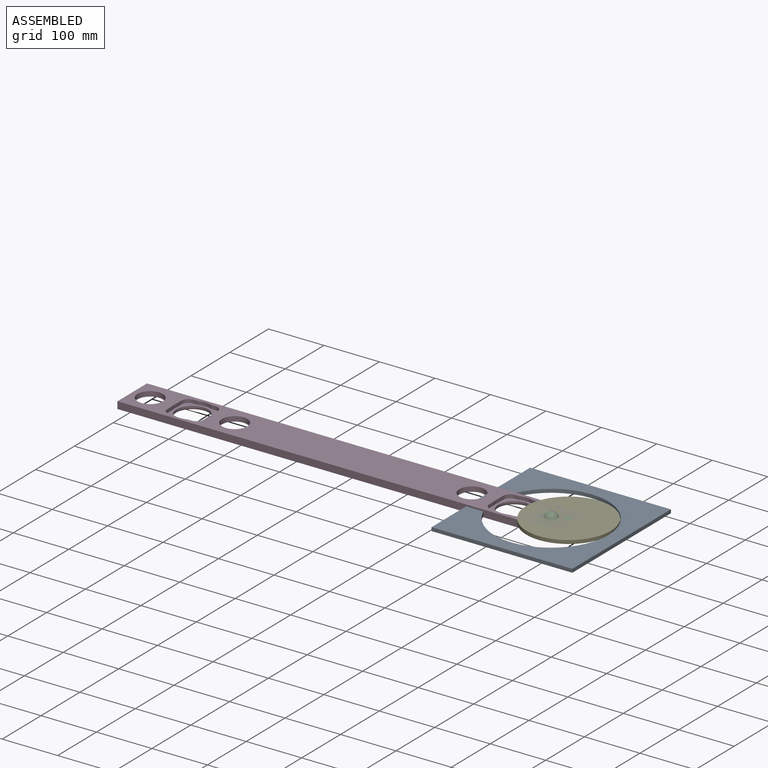
[diagram: assembled view]
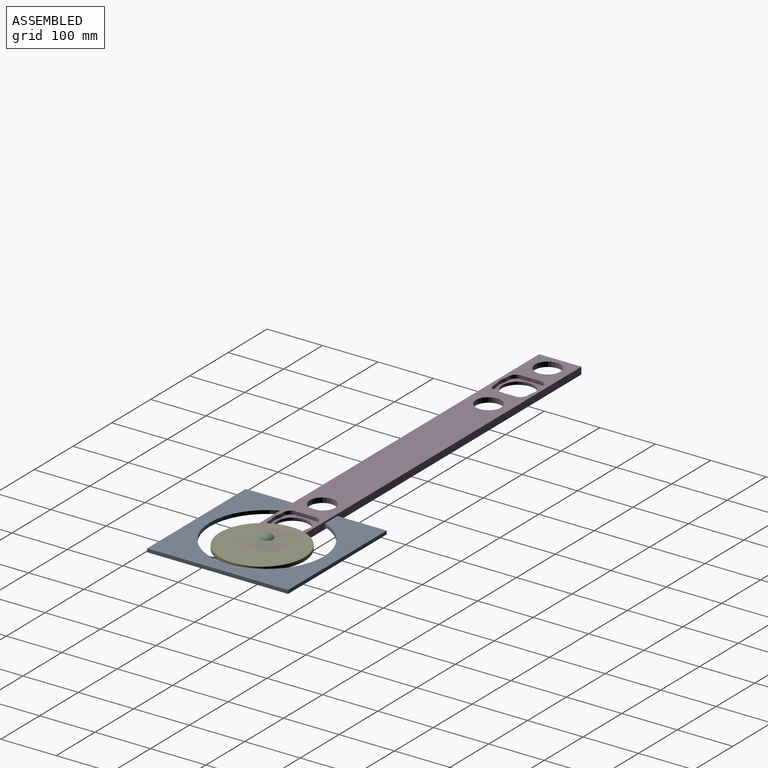
[diagram: assembled view, second angle]
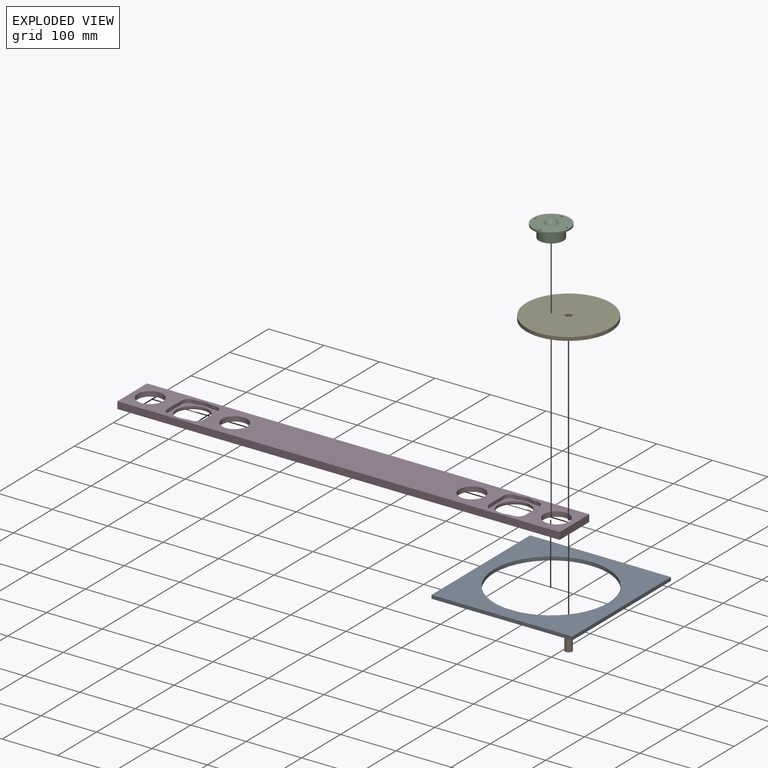
[diagram: exploded view]
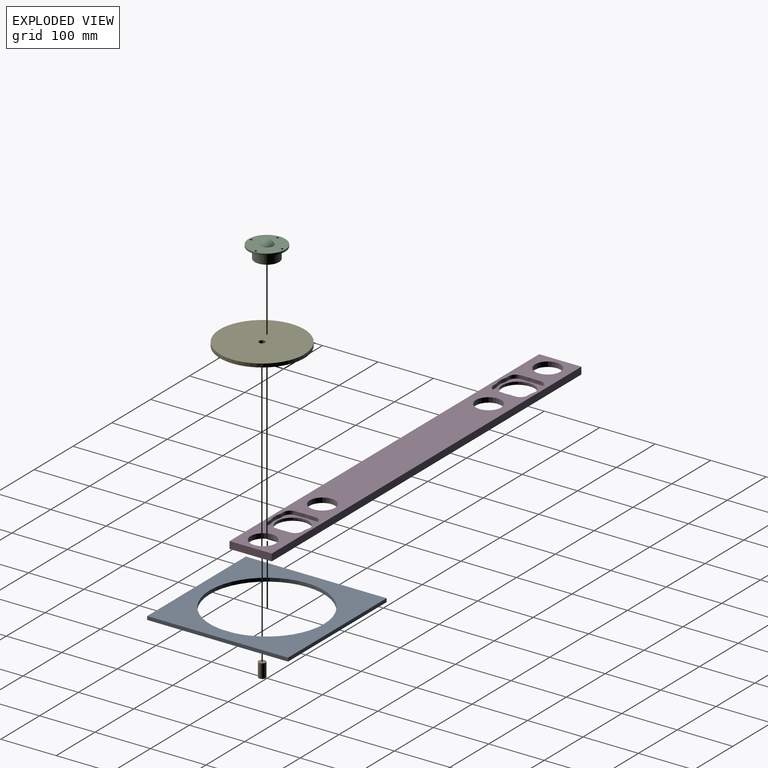
[diagram: exploded view, second angle]
ASSEMBLY  parts=4 mates=3
PART A: 7 faces, bbox 254x254x6.4 mm
  f0: plane 254x6.35mm, normal (0,1,0), area 1612.9mm2, adj f1,f4,f5,f6
  f1: plane 254x6.35mm, normal (-1,0,0), area 1612.9mm2, adj f0,f2,f5,f6
  f2: plane 254x6.35mm, normal (0,-1,0), area 1612.9mm2, adj f1,f4,f5,f6
  f3: cylinder r=102.87mm len=205.74mm, axis (0,0,-1), area 4104.3mm2, adj f5,f6
  f4: plane 254x6.35mm, normal (1,0,0), area 1612.9mm2, adj f0,f2,f5,f6
  f5: plane 254x254mm, normal (0,0,1), area 31270.9mm2, adj f0,f1,f2,f3,f4
  f6: plane 254x254mm, normal (0,0,-1), area 31270.9mm2, adj f0,f1,f2,f3,f4
PART B: 3 faces, bbox 12.7x12.7x25.4 mm
  f0: cylinder r=6.35mm len=25.4mm, axis (0,0,-1), area 1013.4mm2, adj f1,f2
  f1: plane 12.7x12.7mm, normal (0,0,1), area 126.7mm2, adj f0
  f2: plane 12.7x12.7mm, normal (0,0,-1), area 126.7mm2, adj f0
PART C: 74 faces, bbox 806x12.7x83.2 mm
  f0: plane 797.56x76.2mm, normal (0,1,0), area 46329.1mm2, adj f4,f5,f6,f7,f16,f17,f18,f19
  f1: cylinder r=28.57mm len=57.15mm, axis (0,-1,0), area 570mm2, adj f67,f70
  f2: cylinder r=28.57mm len=57.15mm, axis (0,1,0), area 570mm2, adj f43,f69
  f3: plane 797.56x76.2mm, normal (0,-1,0), area 38070.3mm2, adj f4,f5,f6,f7,f68,f69,f70,f71
  f4: plane 76.2x12.7mm, normal (1,0,0), area 902.9mm2, adj f0,f3,f5,f7,f14,f15,f71
  f5: plane 797.56x12.7mm, normal (0,0,1), area 10129mm2, adj f0,f3,f4,f6
  f6: plane 76.2x12.7mm, normal (-1,0,0), area 967.7mm2, adj f0,f3,f5,f7
  f7: plane 797.56x12.7mm, normal (0,0,-1), area 10129mm2, adj f0,f3,f4,f6
  f8: cylinder r=33.02mm len=66.04mm, axis (0,-1,0), area 131.7mm2, adj f9,f73
  f9: plane 66.04x66.04mm, normal (0,-1,0), area 1783.6mm2, adj f8,f19
  f10: cylinder r=33.02mm len=66.04mm, axis (0,-1,0), area 131.7mm2, adj f11,f68
  f11: plane 66.04x66.04mm, normal (0,-1,0), area 1783.6mm2, adj f10,f18
  f12: cylinder r=33.02mm len=66.04mm, axis (0,-1,0), area 131.7mm2, adj f13,f72
  f13: plane 66.04x66.04mm, normal (0,-1,0), area 1783.6mm2, adj f12,f17
  f14: cylinder r=33.02mm len=66.04mm, axis (0,-1,0), area 123.7mm2, adj f4,f15,f71
  f15: plane 66.04x65.43mm, normal (0,-1,0), area 1778.5mm2, adj f4,f14,f16
  f16: cylinder r=22.86mm len=45.72mm, axis (0,1,0), area 1276.9mm2, adj f0,f15
  f17: cylinder r=22.86mm len=45.72mm, axis (0,1,0), area 1276.9mm2, adj f0,f13
  f18: cylinder r=22.86mm len=45.72mm, axis (0,1,0), area 1276.9mm2, adj f0,f11
  f19: cylinder r=22.86mm len=45.72mm, axis (0,1,0), area 1276.9mm2, adj f0,f9
  f20: cylinder r=33mm len=20.55mm, axis (0,1,0), area 132.7mm2, adj f0,f21,f42,f43
  f21: cylinder r=12.7mm len=6.35mm, axis (0,1,0), area 25.5mm2, adj f0,f20,f22,f43
  f22: plane 6.35x5.58mm, normal (0,0,1), area 35.4mm2, adj f0,f21,f23,f43
  f23: cylinder r=12.7mm len=12.7mm, axis (0,1,0), area 126.7mm2, adj f0,f22,f24,f43
  f24: plane 12.07x6.35mm, normal (1,0,0), area 76.7mm2, adj f0,f23,f25,f43
  f25: cylinder r=3.17mm len=6.35mm, axis (0,1,0), area 3.3mm2, adj f0,f24,f26,f43
  f26: cylinder r=33mm len=11.12mm, axis (0,1,0), area 71mm2, adj f0,f25,f27,f43
  f27: plane 12.34x6.35mm, normal (1,0,0), area 78.4mm2, adj f0,f26,f28,f43
  f28: cylinder r=12.7mm len=12.7mm, axis (0,1,0), area 126.7mm2, adj f0,f27,f29,f43
  f29: plane 6.35x5.58mm, normal (0,0,-1), area 35.4mm2, adj f0,f28,f30,f43
  f30: cylinder r=12.7mm len=6.35mm, axis (0,1,0), area 25.5mm2, adj f0,f29,f31,f43
  f31: cylinder r=33mm len=20.55mm, axis (0,1,0), area 132.7mm2, adj f0,f30,f32,f43
  f32: cylinder r=12.7mm len=6.35mm, axis (0,1,0), area 25.5mm2, adj f0,f31,f33,f43
  f33: plane 6.35x5.58mm, normal (0,0,-1), area 35.4mm2, adj f0,f32,f34,f43
  f34: cylinder r=12.7mm len=12.7mm, axis (0,1,0), area 126.7mm2, adj f0,f33,f35,f43
  f35: plane 11.33x6.35mm, normal (-1,0,0), area 71.9mm2, adj f0,f34,f36,f43
  f36: cylinder r=12.7mm len=6.35mm, axis (0,1,0), area 11.9mm2, adj f0,f35,f37,f43
  f37: cylinder r=33mm len=9.68mm, axis (0,1,0), area 61.7mm2, adj f0,f36,f38,f43
  f38: cylinder r=12.7mm len=6.35mm, axis (0,1,0), area 11.9mm2, adj f0,f37,f39,f43
  f39: plane 11.33x6.35mm, normal (-1,0,0), area 71.9mm2, adj f0,f38,f40,f43
  f40: cylinder r=12.7mm len=12.7mm, axis (0,1,0), area 126.7mm2, adj f0,f39,f41,f43
  f41: plane 6.35x5.58mm, normal (0,0,1), area 35.4mm2, adj f0,f40,f42,f43
  f42: cylinder r=12.7mm len=6.35mm, axis (0,1,0), area 25.5mm2, adj f0,f20,f41,f43
  f43: plane 66x66mm, normal (0,1,0), area 1373.8mm2, adj f2,f20,f21,f22,f23,f24,f25,f26
  f44: cylinder r=12.7mm len=6.35mm, axis (0,1,0), area 11.9mm2, adj f0,f45,f66,f67
  f45: cylinder r=33mm len=9.68mm, axis (0,1,0), area 61.7mm2, adj f0,f44,f46,f67
  f46: cylinder r=12.7mm len=6.35mm, axis (0,1,0), area 11.9mm2, adj f0,f45,f47,f67
  f47: plane 11.33x6.35mm, normal (1,0,0), area 71.9mm2, adj f0,f46,f48,f67
  f48: cylinder r=12.7mm len=12.7mm, axis (0,1,0), area 126.7mm2, adj f0,f47,f49,f67
  f49: plane 6.35x5.58mm, normal (0,0,-1), area 35.4mm2, adj f0,f48,f50,f67
  f50: cylinder r=12.7mm len=6.35mm, axis (0,1,0), area 25.5mm2, adj f0,f49,f51,f67
  f51: cylinder r=33mm len=20.55mm, axis (0,1,0), area 132.7mm2, adj f0,f50,f52,f67
  f52: cylinder r=12.7mm len=6.35mm, axis (0,1,0), area 25.5mm2, adj f0,f51,f53,f67
  f53: plane 6.35x5.58mm, normal (0,0,-1), area 35.4mm2, adj f0,f52,f54,f67
  f54: cylinder r=12.7mm len=12.7mm, axis (0,1,0), area 126.7mm2, adj f0,f53,f55,f67
  f55: plane 12.34x6.35mm, normal (-1,0,0), area 78.4mm2, adj f0,f54,f56,f67
  f56: cylinder r=33mm len=11.12mm, axis (0,1,0), area 71mm2, adj f0,f55,f57,f67
  f57: cylinder r=3.17mm len=6.35mm, axis (0,1,0), area 3.3mm2, adj f0,f56,f58,f67
  f58: plane 12.07x6.35mm, normal (-1,0,0), area 76.7mm2, adj f0,f57,f59,f67
  f59: cylinder r=12.7mm len=12.7mm, axis (0,1,0), area 126.7mm2, adj f0,f58,f60,f67
  f60: plane 6.35x5.58mm, normal (0,0,1), area 35.4mm2, adj f0,f59,f61,f67
  f61: cylinder r=12.7mm len=6.35mm, axis (0,1,0), area 25.5mm2, adj f0,f60,f62,f67
  f62: cylinder r=33mm len=20.55mm, axis (0,1,0), area 132.7mm2, adj f0,f61,f63,f67
  f63: cylinder r=12.7mm len=6.35mm, axis (0,1,0), area 25.5mm2, adj f0,f62,f64,f67
  f64: plane 6.35x5.58mm, normal (0,0,1), area 35.4mm2, adj f0,f63,f65,f67
  f65: cylinder r=12.7mm len=12.7mm, axis (0,1,0), area 126.7mm2, adj f0,f64,f66,f67
  f66: plane 11.33x6.35mm, normal (1,0,0), area 71.9mm2, adj f0,f44,f65,f67
  f67: plane 66x66mm, normal (0,1,0), area 1373.8mm2, adj f1,f44,f45,f46,f47,f48,f49,f50
  f68: torus R=36.2mm, axis (0,-1,0), area 1065.5mm2, adj f3,f10,f69
  f69: torus R=31.75mm, axis (0,-1,0), area 926.2mm2, adj f2,f3,f68
  f70: torus R=31.75mm, axis (0,-1,0), area 931.6mm2, adj f1,f3
  f71: torus R=36.2mm, axis (0,-1,0), area 964.7mm2, adj f3,f4,f14
  f72: torus R=36.2mm, axis (0,-1,0), area 1070.9mm2, adj f3,f12
  f73: torus R=36.2mm, axis (0,-1,0), area 1070.9mm2, adj f3,f8
PART D: 4 faces, bbox 152.4x152.4x6.4 mm
  f0: cylinder r=76.2mm len=152.4mm, axis (0,0,-1), area 3040.2mm2, adj f1,f2
  f1: plane 152.4x152.4mm, normal (0,0,1), area 18144.5mm2, adj f0,f3
  f2: plane 152.4x152.4mm, normal (0,0,-1), area 18144.5mm2, adj f0,f3
  f3: cylinder r=5.56mm len=11.11mm, axis (0,0,1), area 221.7mm2, adj f1,f2
PLACE A rot(axis=(0,0,1),180deg) t=(0,0,-6.35)mm
PLACE B rot(axis=(-0.72,0.7,0),180deg) t=(25.11,8.99,-3.17)mm
PLACE C rot(axis=(0,0.71,0.71),180deg) t=(-356.87,0,-3.18)mm
PLACE D rot(axis=(-0.72,0.7,0),180deg) t=(25.11,8.99,3.18)mm
MATE planar D.f0 <-> C.f20  axis (0,0,1) through (25.11,8.99,3.18)mm
MATE fastened D.f3 <-> B.f0  axis (0,0,-1) through (25.11,8.99,-3.18)mm
MATE fastened C.f10 <-> A.f3  axis (0,0,-1) through (0,0,-6.35)mm
